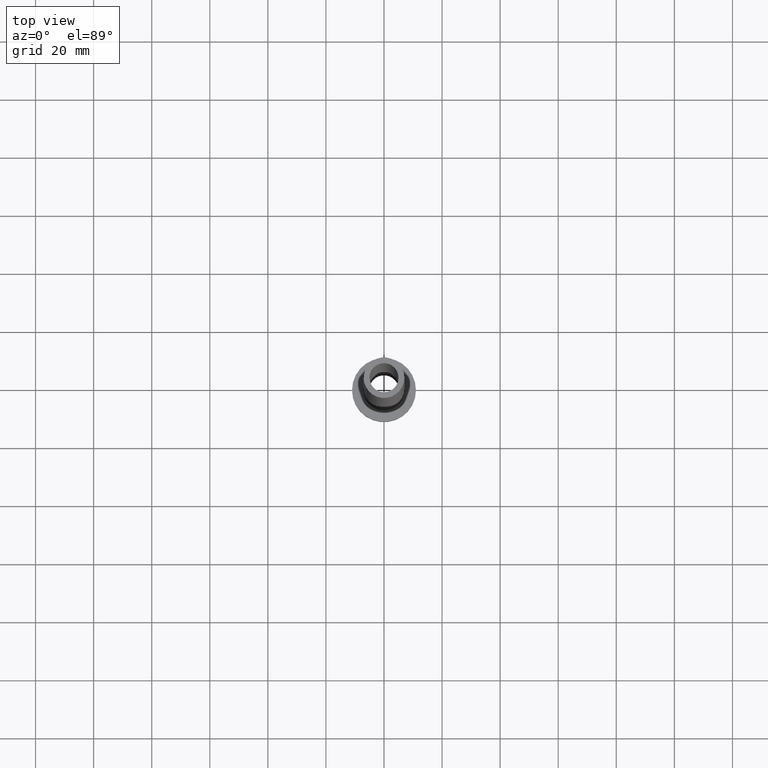
[diagram: clean part render]
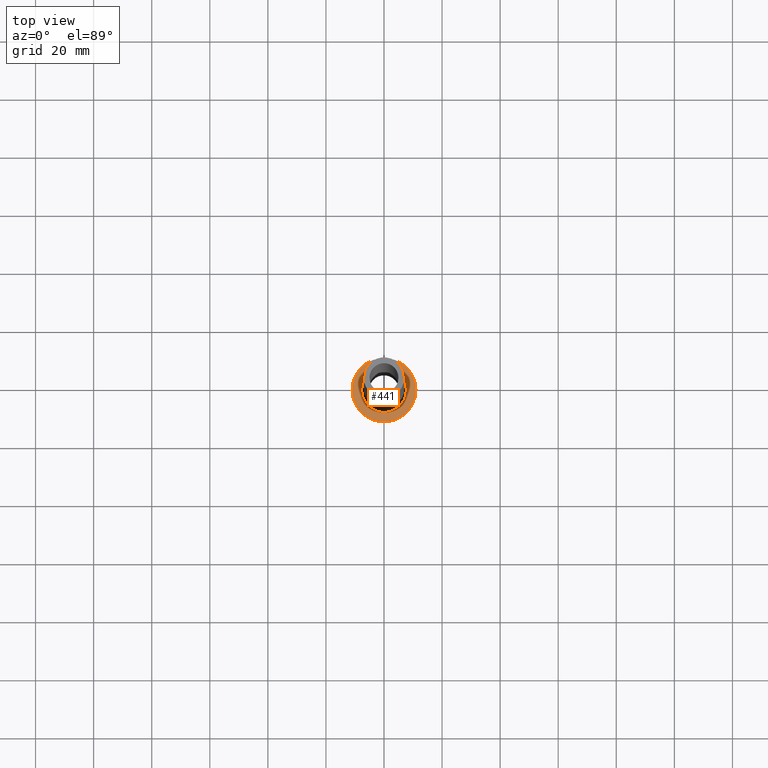
[diagram: same view with one face highlighted and labeled with its STEP entity id]
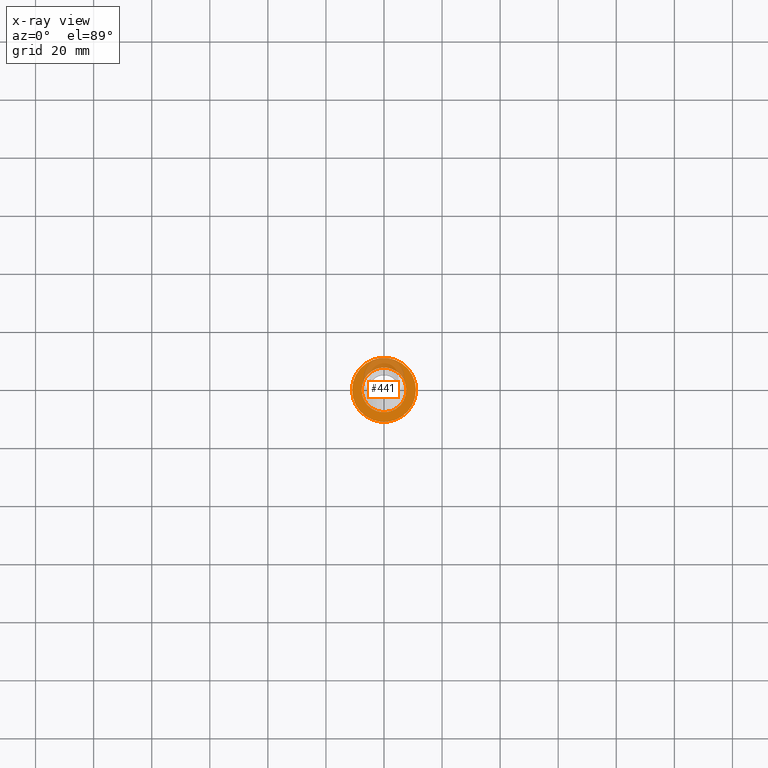
[diagram: x-ray of the same camera — body ghosted, the highlighted face saturated]
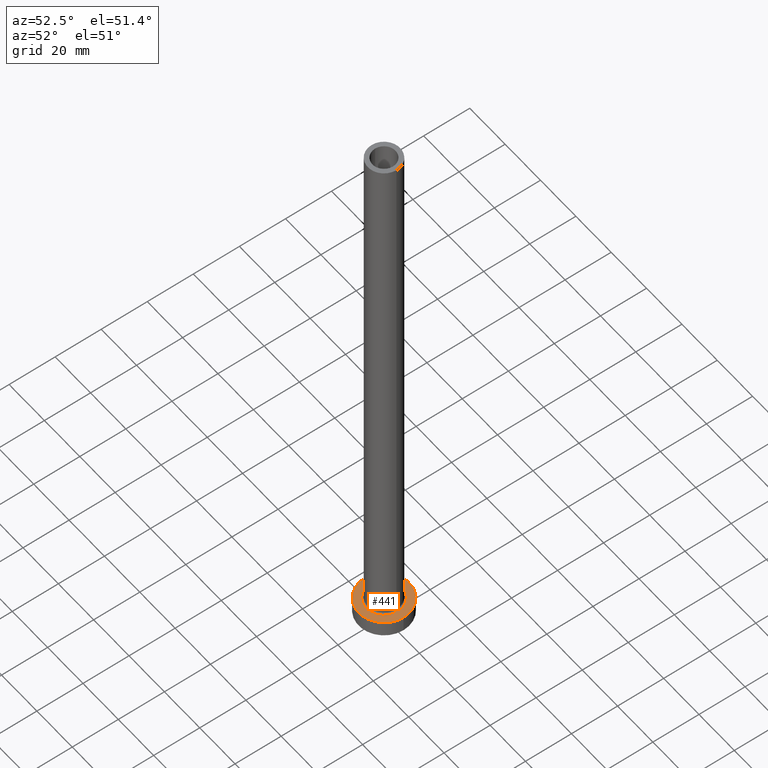
[diagram: same view with one face highlighted and labeled with its STEP entity id]
A machine part, top view. The second image highlights one B-rep face of the part: STEP entity #441.
The next image is the same camera in x-ray: the body ghosted, the highlighted face saturated — about 23% of this face is hidden behind the body in this view.
A second angle (auxiliary view) of the same face is appended — the face is thin or edge-on in the first view.
In plain terms, the highlighted planar face has unit normal (0, 0, 1).
Its self-contained STEP definition (entity closure, byte-faithful):
#44 = CIRCLE ( 'NONE', #308, 11.00000000000000000 ) ;
#52 = DIRECTION ( 'NONE',  ( 1.000000000000000000, 0.000000000000000000, 0.000000000000000000 ) ) ;
#54 = ORIENTED_EDGE ( 'NONE', *, *, #383, .T. ) ;
#64 = ORIENTED_EDGE ( 'NONE', *, *, #107, .T. ) ;
#70 = CIRCLE ( 'NONE', #139, 7.700000000000001066 ) ;
#107 = EDGE_CURVE ( 'NONE', #236, #335, #242, .T. ) ;
#109 = DIRECTION ( 'NONE',  ( 0.000000000000000000, 0.000000000000000000, 1.000000000000000000 ) ) ;
#114 = CARTESIAN_POINT ( 'NONE',  ( -11.00000000000000000, 0.000000000000000000, 7.000000000000000000 ) ) ;
#128 = CARTESIAN_POINT ( 'NONE',  ( 0.000000000000000000, 0.000000000000000000, 7.000000000000000000 ) ) ;
#139 = AXIS2_PLACEMENT_3D ( 'NONE', #128, #222, #52 ) ;
#140 = EDGE_CURVE ( 'NONE', #335, #236, #70, .T. ) ;
#142 = AXIS2_PLACEMENT_3D ( 'NONE', #352, #318, #216 ) ;
#156 = CARTESIAN_POINT ( 'NONE',  ( 0.000000000000000000, 0.000000000000000000, 7.000000000000000000 ) ) ;
#158 = DIRECTION ( 'NONE',  ( -0.000000000000000000, -0.000000000000000000, -1.000000000000000000 ) ) ;
#162 = VERTEX_POINT ( 'NONE', #114 ) ;
#167 = AXIS2_PLACEMENT_3D ( 'NONE', #156, #341, #371 ) ;
#172 = CARTESIAN_POINT ( 'NONE',  ( -7.700000000000001066, 9.429780353434621002E-16, 7.000000000000006217 ) ) ;
#180 = FACE_OUTER_BOUND ( 'NONE', #332, .T. ) ;
#188 = AXIS2_PLACEMENT_3D ( 'NONE', #392, #158, #449 ) ;
#191 = FACE_BOUND ( 'NONE', #311, .T. ) ;
#216 = DIRECTION ( 'NONE',  ( 1.000000000000000000, 0.000000000000000000, 0.000000000000000000 ) ) ;
#222 = DIRECTION ( 'NONE',  ( -0.000000000000000000, -0.000000000000000000, -1.000000000000000000 ) ) ;
#230 = PLANE ( 'NONE',  #167 ) ;
#231 = ORIENTED_EDGE ( 'NONE', *, *, #140, .T. ) ;
#236 = VERTEX_POINT ( 'NONE', #172 ) ;
#242 = CIRCLE ( 'NONE', #188, 7.700000000000001066 ) ;
#263 = VERTEX_POINT ( 'NONE', #364 ) ;
#304 = ORIENTED_EDGE ( 'NONE', *, *, #342, .T. ) ;
#308 = AXIS2_PLACEMENT_3D ( 'NONE', #373, #109, #367 ) ;
#311 = EDGE_LOOP ( 'NONE', ( #231, #64 ) ) ;
#318 = DIRECTION ( 'NONE',  ( 0.000000000000000000, 0.000000000000000000, 1.000000000000000000 ) ) ;
#329 = CARTESIAN_POINT ( 'NONE',  ( 7.700000000000001066, 0.000000000000000000, 7.000000000000006217 ) ) ;
#332 = EDGE_LOOP ( 'NONE', ( #54, #304 ) ) ;
#335 = VERTEX_POINT ( 'NONE', #329 ) ;
#341 = DIRECTION ( 'NONE',  ( 0.000000000000000000, 0.000000000000000000, 1.000000000000000000 ) ) ;
#342 = EDGE_CURVE ( 'NONE', #263, #162, #44, .T. ) ;
#346 = CIRCLE ( 'NONE', #142, 11.00000000000000000 ) ;
#352 = CARTESIAN_POINT ( 'NONE',  ( 0.000000000000000000, 0.000000000000000000, 7.000000000000000000 ) ) ;
#364 = CARTESIAN_POINT ( 'NONE',  ( 11.00000000000000000, 1.347111479062088405E-15, 7.000000000000000000 ) ) ;
#367 = DIRECTION ( 'NONE',  ( 1.000000000000000000, 0.000000000000000000, 0.000000000000000000 ) ) ;
#371 = DIRECTION ( 'NONE',  ( 1.000000000000000000, 0.000000000000000000, -0.000000000000000000 ) ) ;
#373 = CARTESIAN_POINT ( 'NONE',  ( 0.000000000000000000, 0.000000000000000000, 7.000000000000000000 ) ) ;
#383 = EDGE_CURVE ( 'NONE', #162, #263, #346, .T. ) ;
#392 = CARTESIAN_POINT ( 'NONE',  ( 0.000000000000000000, 0.000000000000000000, 7.000000000000000000 ) ) ;
#441 = ADVANCED_FACE ( 'NONE', ( #191, #180 ), #230, .T. ) ;
#449 = DIRECTION ( 'NONE',  ( 1.000000000000000000, 0.000000000000000000, 0.000000000000000000 ) ) ;